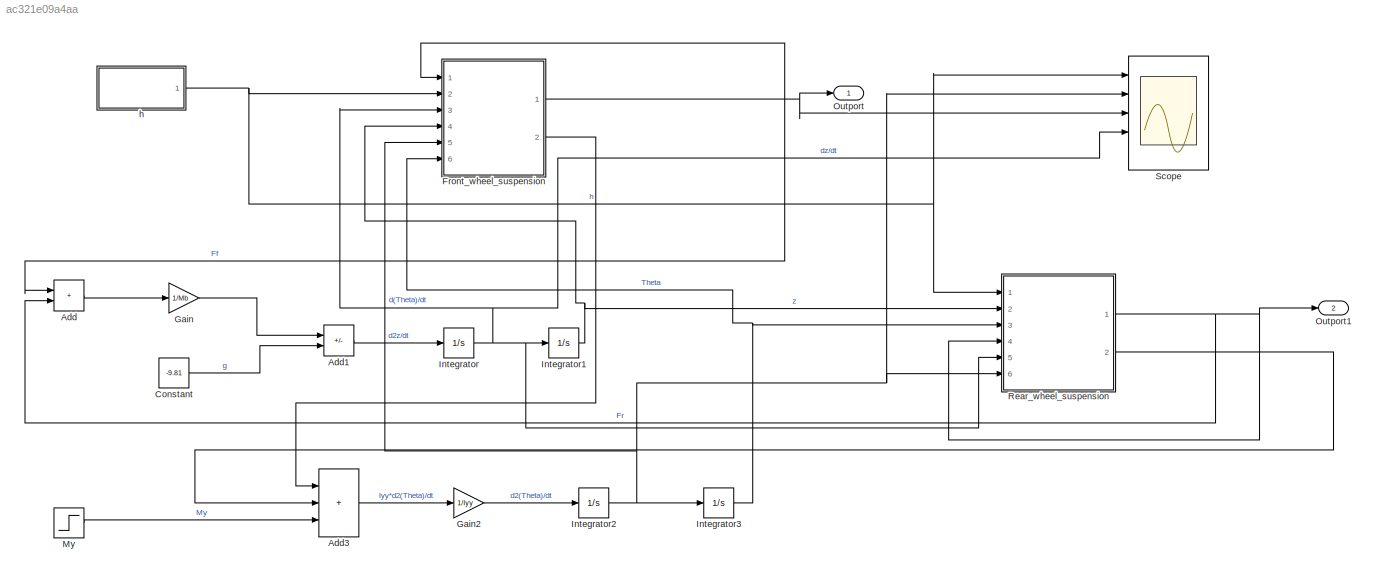
MODEL slx_ac321e09a4aa
KIND model
CONFIG AbsTol = auto
CONFIG EnableMultiTasking = off
CONFIG FixedStep = auto
CONFIG MaxStep = auto
CONFIG MinStep = auto
CONFIG RelTol = 1e-3
CONFIG SampleTimeConstraint = Unconstrained
CONFIG SolverName = VariableStepAuto
CONFIG StartTime = 0.0
CONFIG StopTime = 10.0
BLOCK [Sum] Add
  IconShape = rectangular
  Ports = [2, 1]
BLOCK [Sum] Add1
  IconShape = rectangular
  Inputs = +-
  Ports = [2, 1]
BLOCK [Sum] Add3
  IconShape = rectangular
  Inputs = +++
  Ports = [3, 1]
BLOCK [Constant] Constant
  Value = -9.81
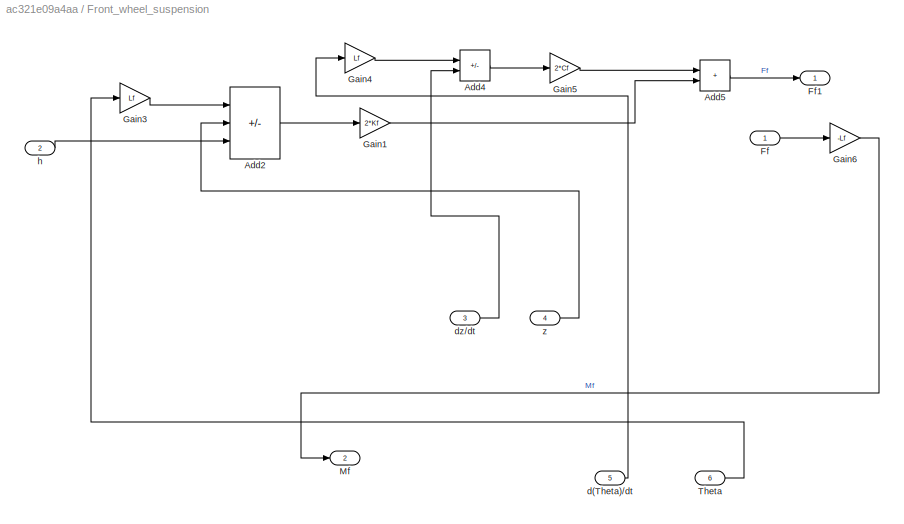
BLOCK [SubSystem] Front_wheel_suspension
  InitFcn = Lf=0.9;\nKf=28000;\nCf=2500;
  Ports = [6, 2]
  RequestExecContextInheritance = off
BLOCK [Sum] Front_wheel_suspension/Add2
  IconShape = rectangular
  Inputs = +--
  Ports = [3, 1]
BLOCK [Sum] Front_wheel_suspension/Add4
  IconShape = rectangular
  Inputs = +-
  Ports = [2, 1]
BLOCK [Sum] Front_wheel_suspension/Add5
  IconShape = rectangular
  Ports = [2, 1]
BLOCK [Inport] Front_wheel_suspension/Ff
BLOCK [Outport] Front_wheel_suspension/Ff1
BLOCK [Gain] Front_wheel_suspension/Gain1
  Gain = 2*Kf
BLOCK [Gain] Front_wheel_suspension/Gain3
  Gain = Lf
BLOCK [Gain] Front_wheel_suspension/Gain4
  Gain = Lf
BLOCK [Gain] Front_wheel_suspension/Gain5
  Gain = 2*Cf
BLOCK [Gain] Front_wheel_suspension/Gain6
  Gain = -Lf
BLOCK [Outport] Front_wheel_suspension/Mf
  Port = 2
BLOCK [Inport] Front_wheel_suspension/Theta
  Port = 6
BLOCK [Inport] Front_wheel_suspension/d(Theta)//dt
  Port = 5
BLOCK [Inport] Front_wheel_suspension/dz//dt
  Port = 3
BLOCK [Inport] Front_wheel_suspension/h
  Port = 2
BLOCK [Inport] Front_wheel_suspension/z
  Port = 4
BLOCK [Gain] Gain
  Gain = 1/Mb
BLOCK [Gain] Gain2
  Gain = 1/Iyy
BLOCK [Integrator] Integrator
  Ports = [1, 1]
BLOCK [Integrator] Integrator1
  Ports = [1, 1]
BLOCK [Integrator] Integrator2
  Ports = [1, 1]
BLOCK [Integrator] Integrator3
  Ports = [1, 1]
BLOCK [Step] My
  SampleTime = 0
BLOCK [Outport] Outport
BLOCK [Outport] Outport1
  Port = 2
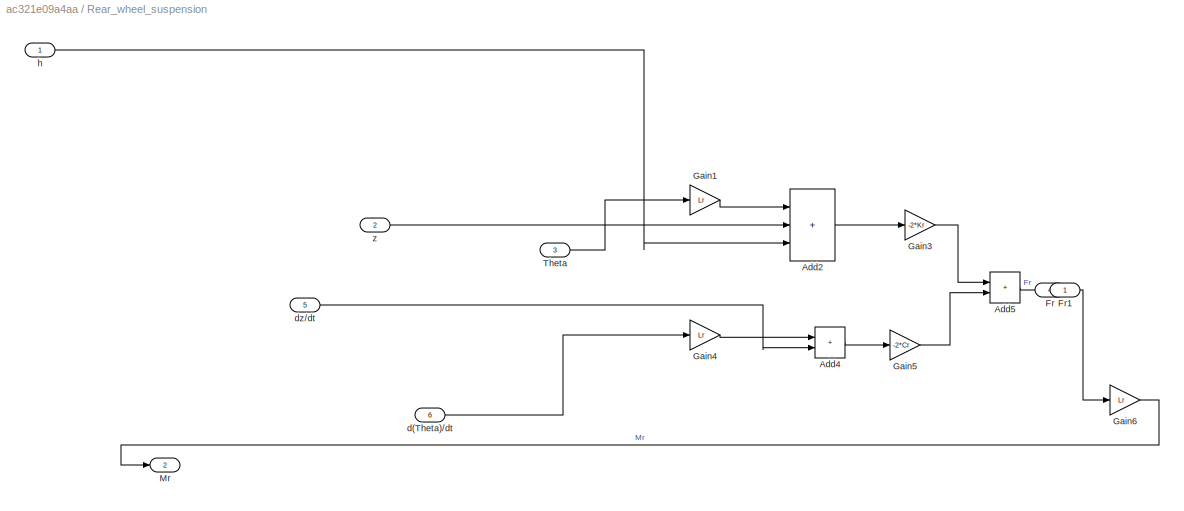
BLOCK [SubSystem] Rear_wheel_suspension
  InitFcn = Lr=1.2;\nKr=21000;\nCr=2000;
  Ports = [6, 2]
  RequestExecContextInheritance = off
BLOCK [Sum] Rear_wheel_suspension/Add2
  IconShape = rectangular
  Inputs = +++
  Ports = [3, 1]
BLOCK [Sum] Rear_wheel_suspension/Add4
  IconShape = rectangular
  Ports = [2, 1]
BLOCK [Sum] Rear_wheel_suspension/Add5
  IconShape = rectangular
  Ports = [2, 1]
BLOCK [Inport] Rear_wheel_suspension/Fr
  Port = 4
BLOCK [Outport] Rear_wheel_suspension/Fr1
BLOCK [Gain] Rear_wheel_suspension/Gain1
  Gain = Lr
BLOCK [Gain] Rear_wheel_suspension/Gain3
  Gain = -2*Kr
BLOCK [Gain] Rear_wheel_suspension/Gain4
  Gain = Lr
BLOCK [Gain] Rear_wheel_suspension/Gain5
  Gain = -2*Cr
BLOCK [Gain] Rear_wheel_suspension/Gain6
  Gain = Lr
BLOCK [Outport] Rear_wheel_suspension/Mr
  Port = 2
BLOCK [Inport] Rear_wheel_suspension/Theta
  Port = 3
BLOCK [Inport] Rear_wheel_suspension/d(Theta)//dt
  Port = 6
BLOCK [Inport] Rear_wheel_suspension/dz//dt
  Port = 5
BLOCK [Inport] Rear_wheel_suspension/h
BLOCK [Inport] Rear_wheel_suspension/z
  Port = 2
BLOCK [Scope] Scope
  Floating = off
  NumInputPorts = 5
  Ports = [5]
  ScopeSpecificationString = Simulink.scopes.TimeScopeBlockCfg('CurrentConfiguration', extmgr.ConfigurationSet(extmgr.Configuration('Core','General UI',true),extmgr.Configuration('Core','Source UI',true),extmgr.Configuration('Sources','WiredSimulink',true),extmgr.Configuration('Visuals','Time Domain',true,'SerializedDisplays',{struct('MinYLimReal','-0.125','MaxYLimReal','1.125','YLabelReal','','MinYLimMag','0.00000','MaxYLimM...<+3408ch>
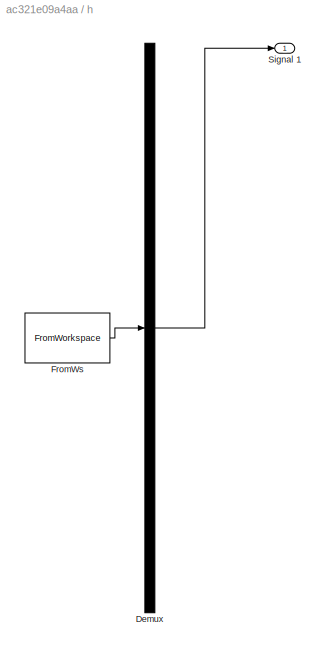
BLOCK [SubSystem] h 
  ClipboardFcn = sigbuilder_block('clipboard');
  CloseFcn = sigbuilder_block('close');
  ContinueFcn = sigbuilder_block('continue');
  CopyFcn = sigbuilder_block('copy');
  DeleteFcn = sigbuilder_block('delete');
  LoadFcn = sigbuilder_block('load');
  MaskHideContents = on
  ModelCloseFcn = sigbuilder_block('modelClose');
  NameChangeFcn = sigbuilder_block('namechange');
  OpenFcn = sigbuilder_block('open',[437.6 153 550.4 359.25 ]);
  PauseFcn = sigbuilder_block('pause');
  Ports = [0, 1]
  PreSaveFcn = sigbuilder_block('preSave');
  RequestExecContextInheritance = off
  StartFcn = sigbuilder_block('start');
  StopFcn = sigbuilder_block('stop');
  Tag = STV Subsys
BLOCK [Demux] h /Demux
  DisplayOption = none
  Outputs = 1
  Ports = [1, 1]
  Tag = STV Demux
BLOCK [FromWorkspace] h /FromWs
  Tag = STV FromWs
  VariableName = tuvar
BLOCK [Outport] h /Signal 1
  Tag = STV Outport
LINE Add1:1 -> Integrator:1
LINE Add3:1 -> Gain2:1
LINE Add:1 -> Gain:1
LINE Constant:1 -> Add1:2
LINE Front_wheel_suspension/Add2:1 -> Front_wheel_suspension/Gain1:1
LINE Front_wheel_suspension/Add4:1 -> Front_wheel_suspension/Gain5:1
LINE Front_wheel_suspension/Add5:1 -> Front_wheel_suspension/Ff1:1
LINE Front_wheel_suspension/Ff:1 -> Front_wheel_suspension/Gain6:1
LINE Front_wheel_suspension/Gain1:1 -> Front_wheel_suspension/Add5:2
LINE Front_wheel_suspension/Gain3:1 -> Front_wheel_suspension/Add2:1
LINE Front_wheel_suspension/Gain4:1 -> Front_wheel_suspension/Add4:1
LINE Front_wheel_suspension/Gain5:1 -> Front_wheel_suspension/Add5:1
LINE Front_wheel_suspension/Gain6:1 -> Front_wheel_suspension/Mf:1
LINE Front_wheel_suspension/Theta:1 -> Front_wheel_suspension/Gain3:1
LINE Front_wheel_suspension/d(Theta)//dt:1 -> Front_wheel_suspension/Gain4:1
LINE Front_wheel_suspension/dz//dt:1 -> Front_wheel_suspension/Add4:2
LINE Front_wheel_suspension/h:1 -> Front_wheel_suspension/Add2:3
LINE Front_wheel_suspension/z:1 -> Front_wheel_suspension/Add2:2
NET Front_wheel_suspension:1 -> Add:1, Front_wheel_suspension:1, Outport:1, Scope:3
LINE Front_wheel_suspension:2 -> Add3:1
LINE Gain2:1 -> Integrator2:1
LINE Gain:1 -> Add1:1
NET Integrator1:1 -> Front_wheel_suspension:4, Rear_wheel_suspension:2
NET Integrator2:1 -> Front_wheel_suspension:5, Integrator3:1, Rear_wheel_suspension:6, Scope:2
NET Integrator3:1 -> Front_wheel_suspension:6, Rear_wheel_suspension:3
NET Integrator:1 -> Front_wheel_suspension:3, Integrator1:1, Rear_wheel_suspension:5, Scope:4
LINE My:1 -> Add3:3
LINE Rear_wheel_suspension/Add2:1 -> Rear_wheel_suspension/Gain3:1
LINE Rear_wheel_suspension/Add4:1 -> Rear_wheel_suspension/Gain5:1
LINE Rear_wheel_suspension/Add5:1 -> Rear_wheel_suspension/Fr1:1
LINE Rear_wheel_suspension/Fr:1 -> Rear_wheel_suspension/Gain6:1
LINE Rear_wheel_suspension/Gain1:1 -> Rear_wheel_suspension/Add2:1
LINE Rear_wheel_suspension/Gain3:1 -> Rear_wheel_suspension/Add5:1
LINE Rear_wheel_suspension/Gain4:1 -> Rear_wheel_suspension/Add4:1
LINE Rear_wheel_suspension/Gain5:1 -> Rear_wheel_suspension/Add5:2
LINE Rear_wheel_suspension/Gain6:1 -> Rear_wheel_suspension/Mr:1
LINE Rear_wheel_suspension/Theta:1 -> Rear_wheel_suspension/Gain1:1
LINE Rear_wheel_suspension/d(Theta)//dt:1 -> Rear_wheel_suspension/Gain4:1
LINE Rear_wheel_suspension/dz//dt:1 -> Rear_wheel_suspension/Add4:2
LINE Rear_wheel_suspension/h:1 -> Rear_wheel_suspension/Add2:3
LINE Rear_wheel_suspension/z:1 -> Rear_wheel_suspension/Add2:2
NET Rear_wheel_suspension:1 -> Add:2, Outport1:1, Rear_wheel_suspension:4
LINE Rear_wheel_suspension:2 -> Add3:2
NET h :1 -> Front_wheel_suspension:2, Rear_wheel_suspension:1, Scope:1
note: NET lines group one-source signal fan-out (src -> all destinations, sorted); 1:1 wires keep LINE
